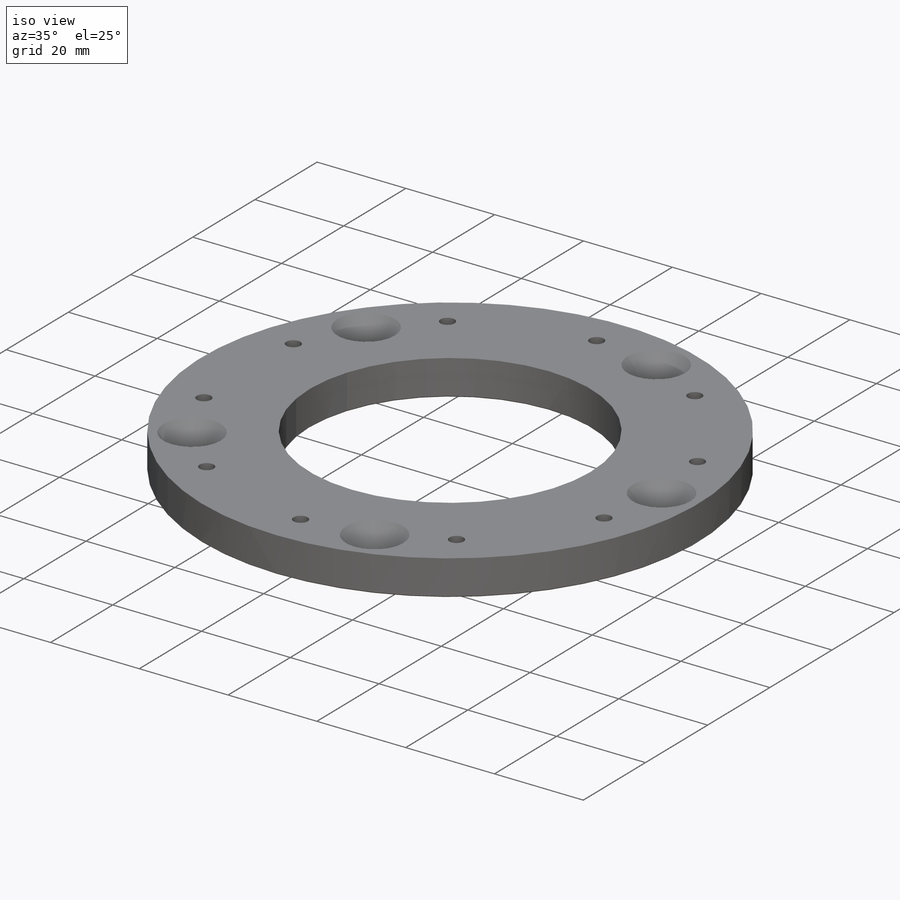
[diagram: iso view]
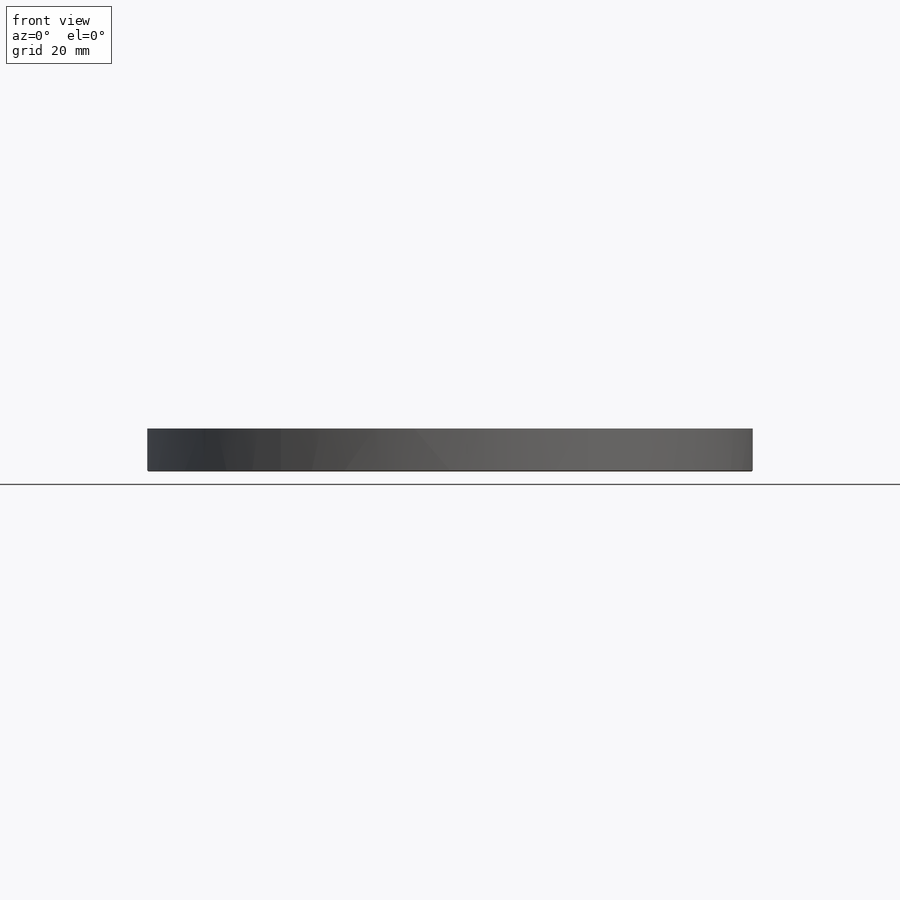
[diagram: front view]
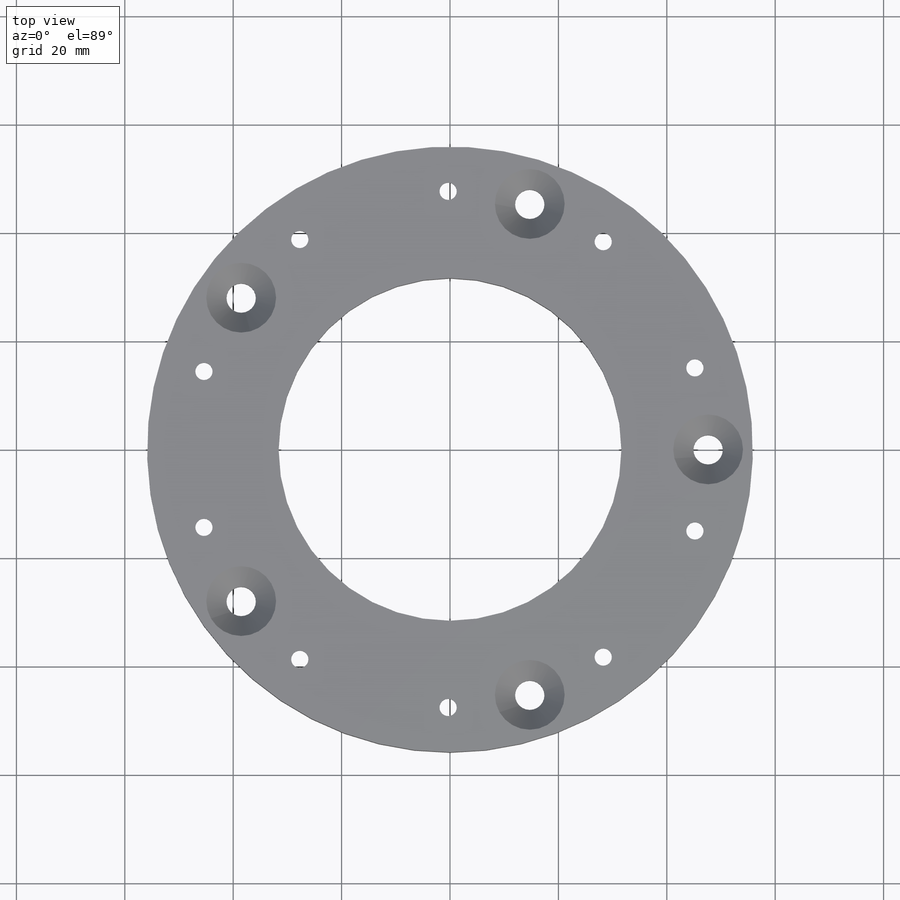
[diagram: top view]
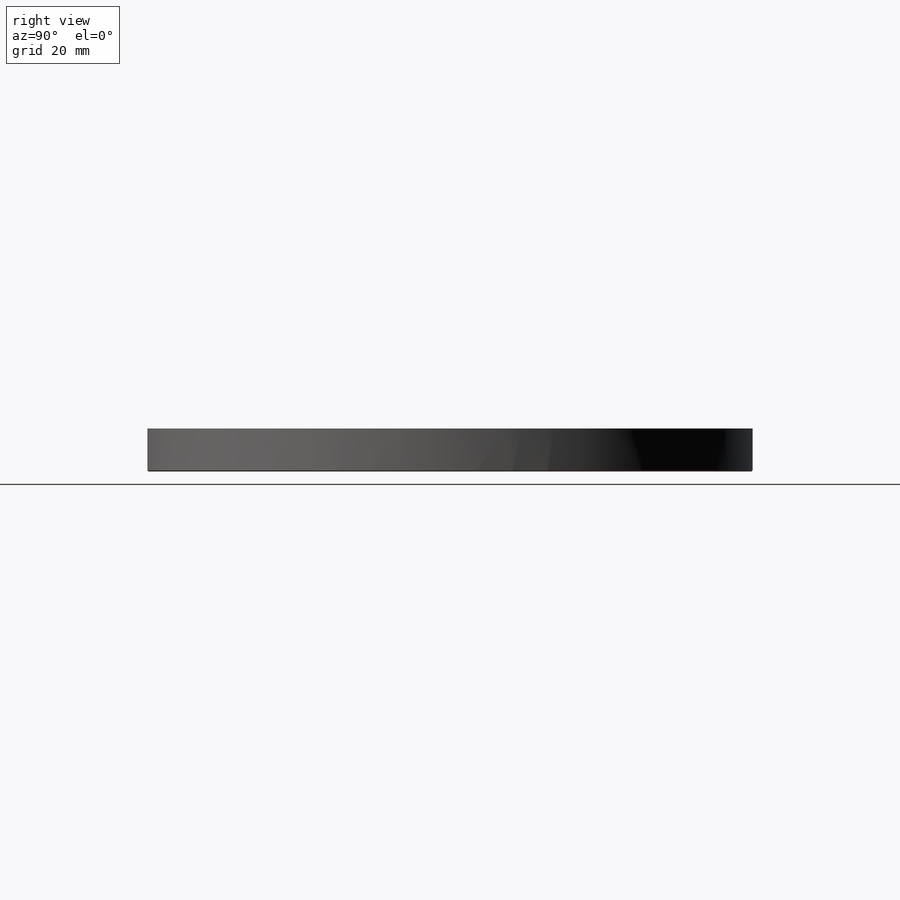
[diagram: right view]
SOLIDWORKS PART (.sldprt)
format: sldprt  version: not decoded by parser v0  size: 333,824 bytes
history: native  units: mm
features: sketch x6, cut_extrude x2, material x1, revolve x1, hole x1, chamfer x1 (+12 scaffold rows collapsed; 1 parser-record rows omitted)
feature tree (25):
  scaffold x12  (default folders/planes/origin — collapsed)
  material  "6061-T6 (SS)"
  sketch  "Sketch1"  dims[c1.D1=63.5mm c1.D2=1.905mm c1.D3=111.76mm c1.D4=3.9878mm c1.D5=7.9375mm c1.D6=12.7mm c2.D2=7.112mm c2.D6=82.55mm c2.D1=2.54mm]
  revolve  "Revolve1"  Angle=360deg
  parser-record x1  (decoder bookkeeping rows leaked as tree rows — omitted from the tree; the rows remain in map.json)
  sketch  "Sketch2"  dims[c1.D1=59.4614mm c1.D2=56.261mm c1.D3=56.261mm c1.D4=56.261mm c1.D5=52.959mm c2.D2=47.625mm c3.D2=72.0deg c3.D3=~45.294067mm c4.D3=72.0deg c4.D4=~38.529434mm c5.D4=72.0deg c5.D5=~45.294248mm c6.D5=72.0deg c6.D6=47.625mm c7.D6=108.0deg]
  hole  "CSK for 1/4 Flat Head Machine Screw1"  Diameter=5.4102mm Depth=7.9375mm
  sketch  "Sketch4"
  sketch  "Sketch3"  dims[hole-wizard template sketch: 54 standard entries collapsed; hole parameters kept: c17.Thru Hole Dia.=5.4102mm c17.Thru Hole Depth=7.9375mm c17.Near C'Sink Dia.=12.8778mm c17.D4=~3.666174mm c17.Near C'Sink Angle=82.0deg]
  sketch  "Sketch5"  dims[c1.D1=3.175mm c1.D3=95.25mm c1.D4=12.8778mm c1.D2=3.175mm c1.D5=3.175mm c1.D7=3.175mm c1.D8=12.8778mm c1.D9=3.175mm c1.D10=12.8778mm c1.D11=12.8778mm c1.D12=12.8778mm c2.D3=~50.742696mm c2.D4=~50.742696mm c2.D5=~50.742696mm c2.D6=~50.742696mm c3.D3=7.62mm c3.D4=~15.69303mm c3.D2=~15.69303mm c4.D4=~14.183833mm c4.D5=~15.69245mm c4.D6=~18.13446mm c4.D7=~11.725694mm c4.D8=~14.18209mm c4.D9=~15.694189mm c4.D10=~14.182671mm c4.D11=~15.69361mm c4.D12=~14.183252mm]
  cut_extrude  "Rivet Holes"  [1 undecoded]
  sketch  "Sketch6"  dims[D1=7.9375mm]
  cut_extrude  "Cut-Extrude2"  Depth=1.7272mm
  chamfer  "Chamfer1"  Distance=0.2032mm Angle=45deg
decode coverage: 9 of 11 modeling features carry decoded parameters
note: ~ marks probable driven/reference dimensions
note: 1 parameter value undecoded
note: suppression state not decoded; provenance and decode notes live in map.json
